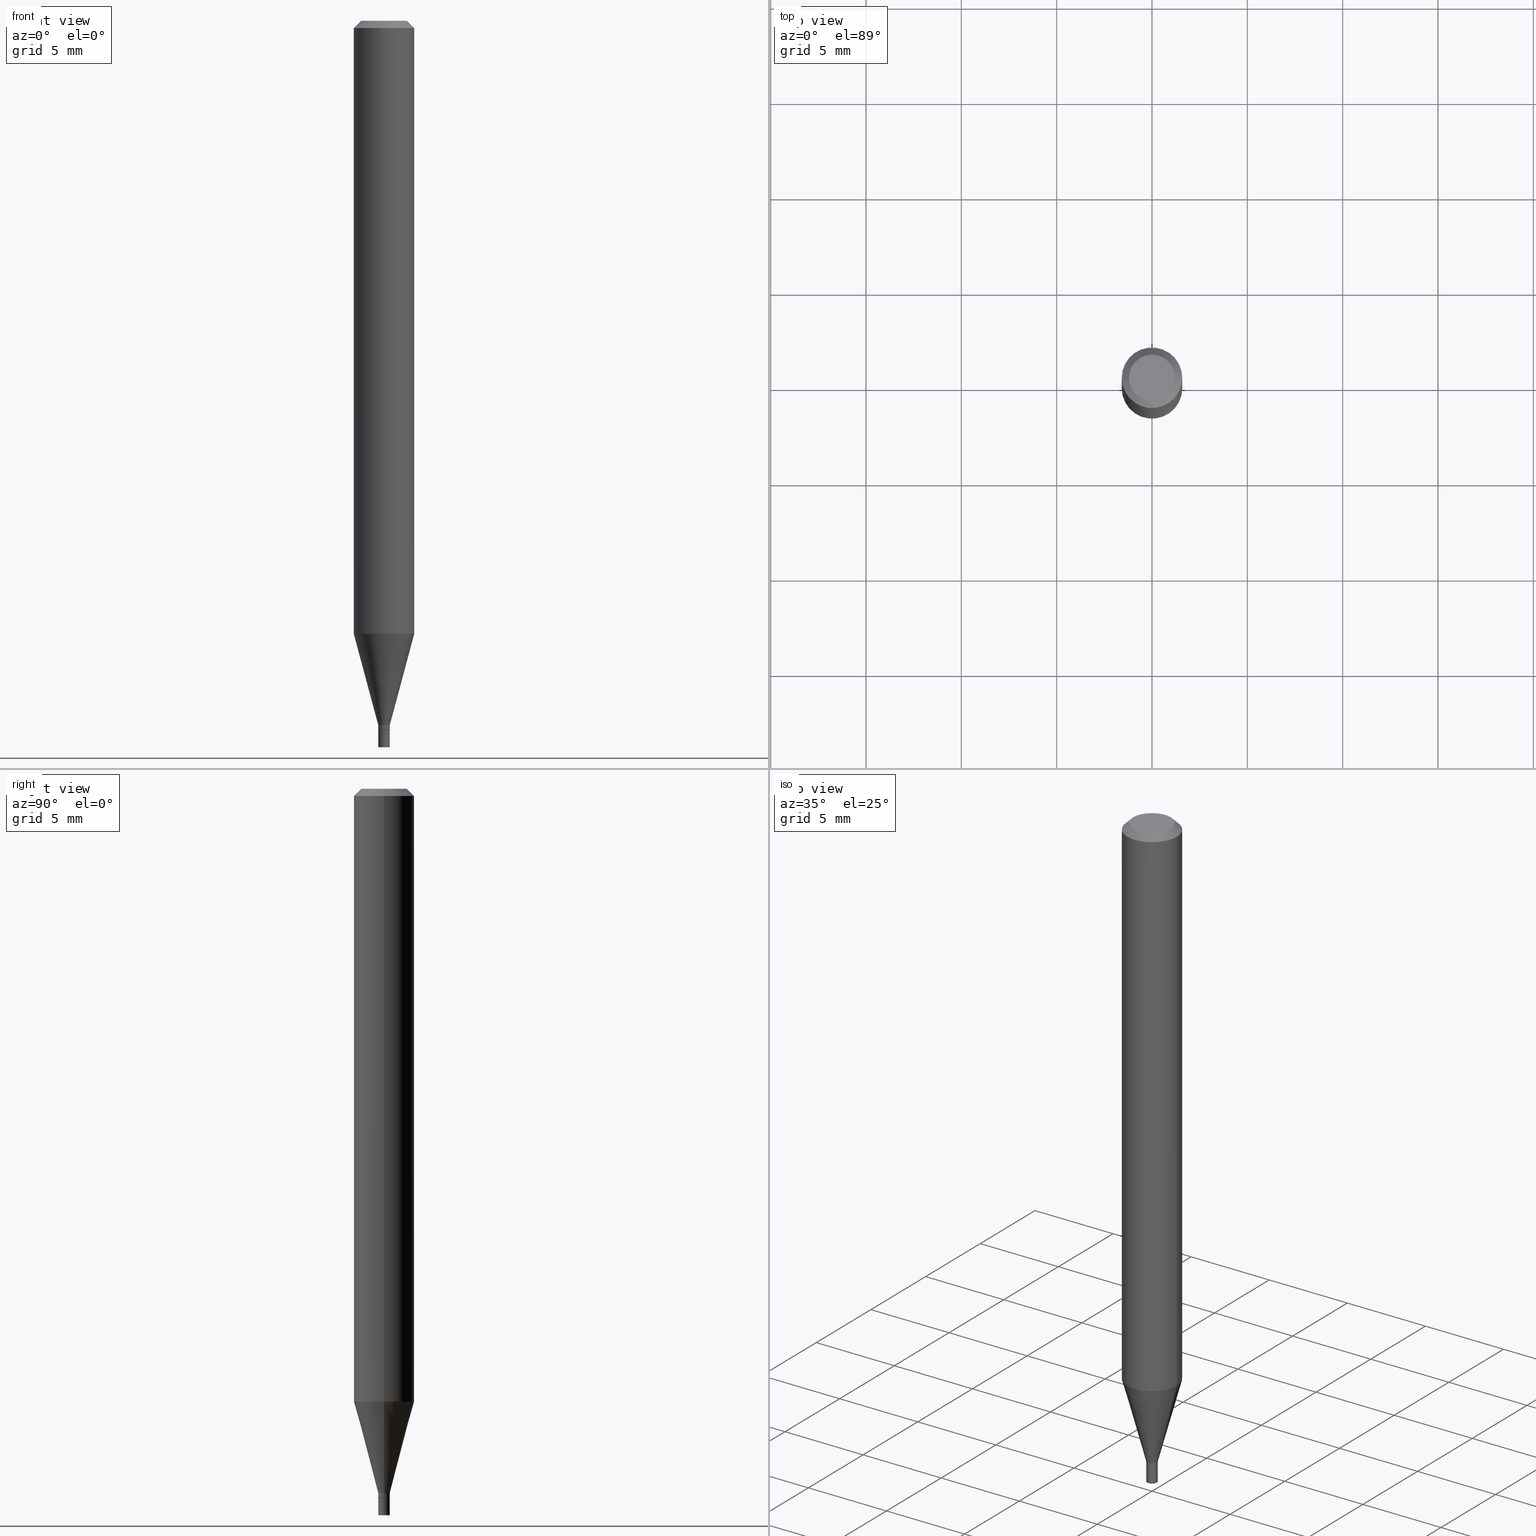
[diagram: canonical four-view strip — front | top / right | iso, engineering-drawing reading convention]
A machine part, canonical four-view strip (front | top / right | iso — engineering-drawing reading convention). The complete STEP part file that produces these views, byte-faithful:
ISO-10303-21;
HEADER;
FILE_DESCRIPTION (( 'STEP AP203' ),
    '1' );
FILE_NAME ('02220.STEP',
    '2024-03-18T19:54:57',
    ( '' ),
    ( '' ),
    'SwSTEP 2.0',
    'SolidWorks 2023',
    '' );
FILE_SCHEMA (( 'CONFIG_CONTROL_DESIGN' ));
ENDSEC;

DATA;
#1 = AXIS2_PLACEMENT_3D ( 'NONE', #249, #175, #108 ) ;
#2 = CARTESIAN_POINT ( 'NONE',  ( 0.01199999999999992219, -5.193578491529179010E-15, -1.463500000000000023 ) ) ;
#3 = DIRECTION ( 'NONE',  ( -2.438088387897960049E-29, 3.491481338843145188E-15, 1.000000000000000000 ) ) ;
#4 = CC_DESIGN_SECURITY_CLASSIFICATION ( #378, ( #311 ) ) ;
#5 = DIRECTION ( 'NONE',  ( 1.000000000000000000, -6.982962677686291165E-15, 0.000000000000000000 ) ) ;
#6 = AXIS2_PLACEMENT_3D ( 'NONE', #285, #433, #113 ) ;
#7 = AXIS2_PLACEMENT_3D ( 'NONE', #218, #161, #65 ) ;
#8 = DIRECTION ( 'NONE',  ( 1.000000000000000000, -6.982962677686291165E-15, 0.000000000000000000 ) ) ;
#9 = ORIENTED_EDGE ( 'NONE', *, *, #129, .T. ) ;
#10 = ADVANCED_FACE ( 'NONE', ( #401 ), #333, .T. ) ;
#11 = ORIENTED_EDGE ( 'NONE', *, *, #326, .F. ) ;
#12 = APPROVAL_ROLE ( '' ) ;
#13 = DIRECTION ( 'NONE',  ( -2.445468806185136597E-29, 3.491481338843145583E-15, 1.000000000000000000 ) ) ;
#14 = ORIENTED_EDGE ( 'NONE', *, *, #129, .F. ) ;
#15 = CARTESIAN_POINT ( 'NONE',  ( -0.06250000000000000000, -1.791386593336637406E-15, -0.01499999999999999944 ) ) ;
#16 = APPROVAL_DATE_TIME ( #405, #183 ) ;
#17 = VERTEX_POINT ( 'NONE', #15 ) ;
#18 = AXIS2_PLACEMENT_3D ( 'NONE', #69, #173, #273 ) ;
#19 = VERTEX_POINT ( 'NONE', #80 ) ;
#20 = EDGE_LOOP ( 'NONE', ( #238, #224 ) ) ;
#21 = DATE_AND_TIME ( #47, #158 ) ;
#22 = DIRECTION ( 'NONE',  ( 1.000000000000000000, -6.982962677686291165E-15, 0.000000000000000000 ) ) ;
#23 = APPROVAL_STATUS ( 'not_yet_approved' ) ;
#24 = AXIS2_PLACEMENT_3D ( 'NONE', #76, #247, #356 ) ;
#25 = ORIENTED_EDGE ( 'NONE', *, *, #44, .T. ) ;
#26 = EDGE_CURVE ( 'NONE', #160, #138, #355, .T. ) ;
#27 = DIRECTION ( 'NONE',  ( -1.000000000000000000, 6.982962677686265922E-15, -4.876176775795935793E-29 ) ) ;
#28 = DIRECTION ( 'NONE',  ( 1.000000000000000000, -6.982962677686266711E-15, 0.000000000000000000 ) ) ;
#29 = DIRECTION ( 'NONE',  ( 1.000000000000000000, -6.982962677686266711E-15, 4.876176775795935232E-29 ) ) ;
#30 = CARTESIAN_POINT ( 'NONE',  ( 0.000000000000000000, 0.000000000000000000, 0.000000000000000000 ) ) ;
#31 = AXIS2_PLACEMENT_3D ( 'NONE', #203, #424, #345 ) ;
#32 = CC_DESIGN_DATE_AND_TIME_ASSIGNMENT ( #55, #182, ( #378 ) ) ;
#33 = DIRECTION ( 'NONE',  ( -2.438088387897960049E-29, 3.491481338843145188E-15, 1.000000000000000000 ) ) ;
#34 = ADVANCED_BREP_SHAPE_REPRESENTATION ( '02220', ( #303, #466, #168 ), #268 ) ;
#35 = ADVANCED_FACE ( 'NONE', ( #154 ), #257, .T. ) ;
#36 = LINE ( 'NONE', #320, #110 ) ;
#37 = ORIENTED_EDGE ( 'NONE', *, *, #234, .F. ) ;
#38 = DIRECTION ( 'NONE',  ( -2.445468806185136597E-29, 3.491481338843145583E-15, 1.000000000000000000 ) ) ;
#39 = CIRCLE ( 'NONE', #444, 0.01149999999999999981 ) ;
#40 = CC_DESIGN_APPROVAL ( #73, ( #107 ) ) ;
#41 = ORIENTED_EDGE ( 'NONE', *, *, #301, .T. ) ;
#42 = CARTESIAN_POINT ( 'NONE',  ( 3.555711644193189020E-29, -5.076613866677933538E-15, -1.454000000000000181 ) ) ;
#43 = PERSON_AND_ORGANIZATION ( #316, #388 ) ;
#44 = EDGE_CURVE ( 'NONE', #123, #343, #441, .T. ) ;
#45 = ORIENTED_EDGE ( 'NONE', *, *, #26, .T. ) ;
#46 = VERTEX_POINT ( 'NONE', #445 ) ;
#47 = CALENDAR_DATE ( 2024, 18, 3 ) ;
#48 = CARTESIAN_POINT ( 'NONE',  ( 2.080290297812910479E-44, -2.970103211220577886E-30, -8.506713692488703374E-16 ) ) ;
#49 = DIRECTION ( 'NONE',  ( 1.000000000000000000, -6.982962677686266711E-15, 4.876176775795935793E-29 ) ) ;
#50 = APPLICATION_PROTOCOL_DEFINITION ( 'international standard', 'config_control_design', 1994, #430 ) ;
#51 = VECTOR ( 'NONE', #462, 39.37007874015748854 ) ;
#52 = DIRECTION ( 'NONE',  ( -1.000000000000000000, 6.982962677686265922E-15, -4.876176775795935793E-29 ) ) ;
#53 = ORIENTED_EDGE ( 'NONE', *, *, #323, .F. ) ;
#54 = LOCAL_TIME ( 15, 54, 57.00000000000000000, #414 ) ;
#55 = DATE_AND_TIME ( #232, #252 ) ;
#56 = DIRECTION ( 'NONE',  ( -0.7071067811865676678, 2.468850131082468081E-15, -0.7071067811865273667 ) ) ;
#57 = ORIENTED_EDGE ( 'NONE', *, *, #350, .F. ) ;
#58 = DIRECTION ( 'NONE',  ( 1.000000000000000000, 0.000000000000000000, 0.000000000000000000 ) ) ;
#59 = ORIENTED_EDGE ( 'NONE', *, *, #26, .F. ) ;
#60 = ORIENTED_EDGE ( 'NONE', *, *, #425, .T. ) ;
#61 =( LENGTH_UNIT ( ) NAMED_UNIT ( * ) SI_UNIT ( $, .METRE. ) );
#62 = ADVANCED_FACE ( 'NONE', ( #263 ), #254, .T. ) ;
#63 = ORIENTED_EDGE ( 'NONE', *, *, #140, .F. ) ;
#64 = AXIS2_PLACEMENT_3D ( 'NONE', #371, #3, #251 ) ;
#65 = DIRECTION ( 'NONE',  ( -1.000000000000000000, 6.982962677686266711E-15, 0.000000000000000000 ) ) ;
#66 = CYLINDRICAL_SURFACE ( 'NONE', #24, 0.01199999999999992219 ) ;
#67 = ADVANCED_FACE ( 'NONE', ( #189 ), #117, .T. ) ;
#68 = CARTESIAN_POINT ( 'NONE',  ( 8.379555213227099805E-17, 0.01199999999999488802, -1.463999999999999968 ) ) ;
#69 = CARTESIAN_POINT ( 'NONE',  ( 3.094817645626298552E-29, -4.418579386290752571E-15, -1.265531434217771922 ) ) ;
#70 = VECTOR ( 'NONE', #102, 39.37007874015748143 ) ;
#71 = ORIENTED_EDGE ( 'NONE', *, *, #212, .T. ) ;
#72 = DIRECTION ( 'NONE',  ( -1.000000000000000000, 6.982962677686266711E-15, 0.000000000000000000 ) ) ;
#73 = APPROVAL ( #328, 'UNSPECIFIED' ) ;
#74 = CARTESIAN_POINT ( 'NONE',  ( -0.01199999999999992219, 8.526512829121146941E-17, -5.902722108305848466E-31 ) ) ;
#75 = LINE ( 'NONE', #210, #143 ) ;
#76 = CARTESIAN_POINT ( 'NONE',  ( 0.000000000000000000, 0.000000000000000000, 0.000000000000000000 ) ) ;
#77 = EDGE_CURVE ( 'NONE', #19, #293, #454, .T. ) ;
#78 = AXIS2_PLACEMENT_3D ( 'NONE', #429, #137, #72 ) ;
#79 = DIRECTION ( 'NONE',  ( 1.000000000000000000, -6.982962677686267499E-15, 4.852736867747366768E-29 ) ) ;
#80 = CARTESIAN_POINT ( 'NONE',  ( -0.01200000000000000025, -5.089110215874330372E-15, -1.463999999999999968 ) ) ;
#81 = ORIENTED_EDGE ( 'NONE', *, *, #77, .F. ) ;
#82 = CARTESIAN_POINT ( 'NONE',  ( 3.555711644193189020E-29, -5.076613866677933538E-15, -1.454000000000000181 ) ) ;
#83 = AXIS2_PLACEMENT_3D ( 'NONE', #159, #302, #415 ) ;
#84 = DIRECTION ( 'NONE',  ( -2.445468806185136597E-29, 3.491481338843145583E-15, 1.000000000000000000 ) ) ;
#85 = DIRECTION ( 'NONE',  ( 0.000000000000000000, 0.000000000000000000, 1.000000000000000000 ) ) ;
#86 = CARTESIAN_POINT ( 'NONE',  ( 0.01199999999999992219, -8.379555213223466114E-17, 5.851412130955085677E-31 ) ) ;
#87 = ORIENTED_EDGE ( 'NONE', *, *, #435, .T. ) ;
#88 = APPLICATION_PROTOCOL_DEFINITION ( 'international standard', 'config_control_design', 1994, #253 ) ;
#89 = DIRECTION ( 'NONE',  ( 1.000000000000000000, -6.982962677686251722E-15, 0.000000000000000000 ) ) ;
#90 = ORIENTED_EDGE ( 'NONE', *, *, #319, .T. ) ;
#91 = ORIENTED_EDGE ( 'NONE', *, *, #179, .F. ) ;
#92 = CC_DESIGN_PERSON_AND_ORGANIZATION_ASSIGNMENT ( #402, #225, ( #311 ) ) ;
#93 = EDGE_CURVE ( 'NONE', #148, #384, #284, .T. ) ;
#94 = CIRCLE ( 'NONE', #346, 0.01200000000000000025 ) ;
#95 = CIRCLE ( 'NONE', #18, 0.06250000000000000000 ) ;
#96 = EDGE_LOOP ( 'NONE', ( #99, #438, #63, #114 ) ) ;
#97 = CALENDAR_DATE ( 2024, 18, 3 ) ;
#98 = EDGE_LOOP ( 'NONE', ( #71, #25, #57, #367 ) ) ;
#99 = ORIENTED_EDGE ( 'NONE', *, *, #350, .T. ) ;
#100 = LINE ( 'NONE', #74, #70 ) ;
#101 = CARTESIAN_POINT ( 'NONE',  ( 0.01200000000000000025, -8.379555213223520348E-17, 5.851412130955122461E-31 ) ) ;
#102 = DIRECTION ( 'NONE',  ( -2.445468806185136877E-29, 3.491481338843145188E-15, 1.000000000000000000 ) ) ;
#103 = FACE_OUTER_BOUND ( 'NONE', #200, .T. ) ;
#104 = CARTESIAN_POINT ( 'NONE',  ( 0.06250000000000000000, -4.888073874380388472E-16, -0.01499999999999999944 ) ) ;
#105 = AXIS2_PLACEMENT_3D ( 'NONE', #325, #84, #8 ) ;
#106 = CIRCLE ( 'NONE', #258, 0.06250000000000000000 ) ;
#107 = PRODUCT_DEFINITION ( 'UNKNOWN', '', #311, #216 ) ;
#108 = DIRECTION ( 'NONE',  ( 1.000000000000000000, -6.982962677686266711E-15, 0.000000000000000000 ) ) ;
#109 = CYLINDRICAL_SURFACE ( 'NONE', #376, 0.01200000000000000025 ) ;
#110 = VECTOR ( 'NONE', #331, 39.37007874015748143 ) ;
#111 = CC_DESIGN_APPROVAL ( #183, ( #311 ) ) ;
#112 = DIRECTION ( 'NONE',  ( -2.445468806185136597E-29, 3.491481338843145583E-15, 1.000000000000000000 ) ) ;
#113 = DIRECTION ( 'NONE',  ( 1.000000000000000000, -6.982962677686262766E-15, 0.000000000000000000 ) ) ;
#114 = ORIENTED_EDGE ( 'NONE', *, *, #128, .F. ) ;
#115 = APPROVAL_STATUS ( 'not_yet_approved' ) ;
#116 = AXIS2_PLACEMENT_3D ( 'NONE', #30, #241, #386 ) ;
#117 = CYLINDRICAL_SURFACE ( 'NONE', #431, 0.06250000000000000000 ) ;
#118 = COORDINATED_UNIVERSAL_TIME_OFFSET ( 5, 0, .BEHIND. ) ;
#119 = ORIENTED_EDGE ( 'NONE', *, *, #326, .T. ) ;
#120 = VERTEX_POINT ( 'NONE', #180 ) ;
#121 = ORIENTED_EDGE ( 'NONE', *, *, #141, .T. ) ;
#122 = EDGE_CURVE ( 'NONE', #293, #19, #94, .T. ) ;
#123 = VERTEX_POINT ( 'NONE', #288 ) ;
#124 = DIRECTION ( 'NONE',  ( 1.000000000000000000, -6.982962677686251722E-15, 0.000000000000000000 ) ) ;
#125 = CALENDAR_DATE ( 2024, 18, 3 ) ;
#126 = LINE ( 'NONE', #266, #305 ) ;
#127 = EDGE_LOOP ( 'NONE', ( #262, #186, #53, #404 ) ) ;
#128 = EDGE_CURVE ( 'NONE', #248, #138, #292, .T. ) ;
#129 = EDGE_CURVE ( 'NONE', #148, #17, #261, .T. ) ;
#130 = EDGE_CURVE ( 'NONE', #384, #289, #358, .T. ) ;
#131 = AXIS2_PLACEMENT_3D ( 'NONE', #363, #290, #151 ) ;
#132 = CARTESIAN_POINT ( 'NONE',  ( 3.668203209277705088E-31, -5.237222008264718399E-17, -0.01499999999999999944 ) ) ;
#133 = CIRCLE ( 'NONE', #413, 0.01200000000000000025 ) ;
#134 = DIRECTION ( 'NONE',  ( -2.445468806185136877E-29, 3.491481338843145188E-15, 1.000000000000000000 ) ) ;
#135 = DIRECTION ( 'NONE',  ( -2.445468806185136597E-29, 3.491481338843145583E-15, 1.000000000000000000 ) ) ;
#136 = CARTESIAN_POINT ( 'NONE',  ( 3.555711644193189020E-29, -5.076613866677933538E-15, -1.454000000000000181 ) ) ;
#137 = DIRECTION ( 'NONE',  ( 2.445468806185136597E-29, -3.491481338843145583E-15, -1.000000000000000000 ) ) ;
#138 = VERTEX_POINT ( 'NONE', #400 ) ;
#139 = CIRCLE ( 'NONE', #426, 0.04749999999999999362 ) ;
#140 = EDGE_CURVE ( 'NONE', #138, #160, #412, .T. ) ;
#141 = EDGE_CURVE ( 'NONE', #123, #46, #39, .T. ) ;
#142 = CARTESIAN_POINT ( 'NONE',  ( -0.06250000000000000000, 4.440892098500626162E-16, -3.074334431409316114E-30 ) ) ;
#143 = VECTOR ( 'NONE', #278, 39.37007874015748854 ) ;
#144 = CARTESIAN_POINT ( 'NONE',  ( -0.01149999999999999981, -5.029816265453953987E-15, -1.463999999999999968 ) ) ;
#145 = EDGE_LOOP ( 'NONE', ( #287, #121, #304, #178 ) ) ;
#146 = CC_DESIGN_PERSON_AND_ORGANIZATION_ASSIGNMENT ( #411, #256, ( #448 ) ) ;
#147 = EDGE_LOOP ( 'NONE', ( #91, #227, #440, #220 ) ) ;
#148 = VERTEX_POINT ( 'NONE', #177 ) ;
#149 = APPROVAL_DATE_TIME ( #330, #73 ) ;
#150 = VECTOR ( 'NONE', #134, 39.37007874015748143 ) ;
#151 = DIRECTION ( 'NONE',  ( 1.000000000000000000, -6.982962677686296687E-15, 0.000000000000000000 ) ) ;
#152 = APPROVAL_DATE_TIME ( #21, #432 ) ;
#153 = CYLINDRICAL_SURFACE ( 'NONE', #281, 0.06250000000000000000 ) ;
#154 = FACE_OUTER_BOUND ( 'NONE', #127, .T. ) ;
#155 = DIRECTION ( 'NONE',  ( 1.000000000000000000, -6.982962677686266711E-15, 4.876176775795935793E-29 ) ) ;
#156 = CARTESIAN_POINT ( 'NONE',  ( 2.080290297812910479E-44, -2.970103211220577886E-30, -8.506713692488703374E-16 ) ) ;
#157 =( NAMED_UNIT ( * ) PLANE_ANGLE_UNIT ( ) SI_UNIT ( $, .RADIAN. ) );
#158 = LOCAL_TIME ( 15, 54, 57.00000000000000000, #118 ) ;
#159 = CARTESIAN_POINT ( 'NONE',  ( 3.668203209277704895E-29, -5.237222008264718177E-15, -1.500000000000000222 ) ) ;
#160 = VERTEX_POINT ( 'NONE', #226 ) ;
#161 = DIRECTION ( 'NONE',  ( 2.445468806185136597E-29, -3.491481338843145583E-15, -1.000000000000000000 ) ) ;
#162 = PERSON_AND_ORGANIZATION ( #316, #388 ) ;
#163 = CLOSED_SHELL ( 'NONE', ( #295, #174, #62, #456 ) ) ;
#164 = AXIS2_PLACEMENT_3D ( 'NONE', #136, #421, #246 ) ;
#165 = ORIENTED_EDGE ( 'NONE', *, *, #229, .T. ) ;
#166 = DIRECTION ( 'NONE',  ( 0.7071067811865676678, -7.319954787623323887E-15, -0.7071067811865273667 ) ) ;
#167 = AXIS2_PLACEMENT_3D ( 'NONE', #298, #449, #124 ) ;
#168 = AXIS2_PLACEMENT_3D ( 'NONE', #260, #85, #58 ) ;
#169 = LOCAL_TIME ( 15, 54, 57.00000000000000000, #340 ) ;
#170 = LINE ( 'NONE', #312, #51 ) ;
#171 = FACE_OUTER_BOUND ( 'NONE', #147, .T. ) ;
#172 = DIRECTION ( 'NONE',  ( 1.000000000000000000, -6.982962677686296687E-15, 0.000000000000000000 ) ) ;
#173 = DIRECTION ( 'NONE',  ( -2.445468806185136597E-29, 3.491481338843145583E-15, 1.000000000000000000 ) ) ;
#174 = ADVANCED_FACE ( 'NONE', ( #322 ), #434, .F. ) ;
#175 = DIRECTION ( 'NONE',  ( -2.445468806185136597E-29, 3.491481338843145583E-15, 1.000000000000000000 ) ) ;
#176 = ORIENTED_EDGE ( 'NONE', *, *, #141, .F. ) ;
#177 = CARTESIAN_POINT ( 'NONE',  ( -0.06250000000000000000, -3.974490176440689955E-15, -1.265531434217771922 ) ) ;
#178 = ORIENTED_EDGE ( 'NONE', *, *, #237, .F. ) ;
#179 = EDGE_CURVE ( 'NONE', #410, #120, #139, .T. ) ;
#180 = CARTESIAN_POINT ( 'NONE',  ( -0.04749999999999999362, 3.578768372314195715E-16, -8.506713692488727040E-16 ) ) ;
#181 = DIRECTION ( 'NONE',  ( 1.000000000000000000, -6.982962677686296687E-15, 0.000000000000000000 ) ) ;
#182 = DATE_TIME_ROLE ( 'classification_date' ) ;
#183 = APPROVAL ( #23, 'UNSPECIFIED' ) ;
#184 = CARTESIAN_POINT ( 'NONE',  ( 3.580166332255040005E-29, -5.111528680066365187E-15, -1.463999999999999968 ) ) ;
#185 = EDGE_CURVE ( 'NONE', #46, #248, #36, .T. ) ;
#186 = ORIENTED_EDGE ( 'NONE', *, *, #234, .T. ) ;
#187 = AXIS2_PLACEMENT_3D ( 'NONE', #42, #215, #181 ) ;
#188 = CONICAL_SURFACE ( 'NONE', #7, 0.06250000000000000000, 0.7853981633974768117 ) ;
#189 = FACE_OUTER_BOUND ( 'NONE', #436, .T. ) ;
#190 = PERSON_AND_ORGANIZATION ( #316, #388 ) ;
#191 = DIRECTION ( 'NONE',  ( -2.445468806185136597E-29, 3.491481338843145583E-15, 1.000000000000000000 ) ) ;
#192 = ORIENTED_EDGE ( 'NONE', *, *, #380, .F. ) ;
#193 = CALENDAR_DATE ( 2024, 18, 3 ) ;
#194 = CARTESIAN_POINT ( 'NONE',  ( 3.580166332255040005E-29, -5.111528680066365187E-15, -1.463999999999999968 ) ) ;
#195 = ORIENTED_EDGE ( 'NONE', *, *, #130, .F. ) ;
#196 = PERSON_AND_ORGANIZATION_ROLE ( 'creator' ) ;
#197 = ADVANCED_FACE ( 'NONE', ( #374 ), #153, .T. ) ;
#198 = ORIENTED_EDGE ( 'NONE', *, *, #301, .F. ) ;
#199 = CIRCLE ( 'NONE', #230, 0.01199999999999992219 ) ;
#200 = EDGE_LOOP ( 'NONE', ( #87, #90, #255, #11 ) ) ;
#201 = CC_DESIGN_PERSON_AND_ORGANIZATION_ASSIGNMENT ( #162, #264, ( #311 ) ) ;
#202 = ADVANCED_FACE ( 'NONE', ( #297 ), #270, .F. ) ;
#203 = CARTESIAN_POINT ( 'NONE',  ( 3.580166332255040005E-29, -5.111528680066365187E-15, -1.463999999999999968 ) ) ;
#204 = DIRECTION ( 'NONE',  ( 2.438088387897960049E-29, -3.491481338843145188E-15, -1.000000000000000000 ) ) ;
#205 = AXIS2_PLACEMENT_3D ( 'NONE', #82, #112, #366 ) ;
#206 = DIRECTION ( 'NONE',  ( -2.445468806185136597E-29, 3.491481338843145583E-15, 1.000000000000000000 ) ) ;
#207 = AXIS2_PLACEMENT_3D ( 'NONE', #68, #204, #27 ) ;
#208 = VERTEX_POINT ( 'NONE', #337 ) ;
#209 = EDGE_CURVE ( 'NONE', #120, #17, #126, .T. ) ;
#210 = CARTESIAN_POINT ( 'NONE',  ( -0.01199999999999992219, -4.991348738386722228E-15, -1.454000000000000181 ) ) ;
#211 = FACE_OUTER_BOUND ( 'NONE', #96, .T. ) ;
#212 = EDGE_CURVE ( 'NONE', #46, #123, #235, .T. ) ;
#213 = CARTESIAN_POINT ( 'NONE',  ( 0.000000000000000000, 0.000000000000000000, 0.000000000000000000 ) ) ;
#214 = CLOSED_SHELL ( 'NONE', ( #383, #10, #465, #197, #35, #354, #67, #269, #202, #286, #335, #307 ) ) ;
#215 = DIRECTION ( 'NONE',  ( -2.445468806185136597E-29, 3.491481338843145583E-15, 1.000000000000000000 ) ) ;
#216 = DESIGN_CONTEXT ( 'detailed design', #253, 'design' ) ;
#217 = ORIENTED_EDGE ( 'NONE', *, *, #212, .F. ) ;
#218 = CARTESIAN_POINT ( 'NONE',  ( 3.668203209277705088E-31, -5.237222008264718399E-17, -0.01499999999999999944 ) ) ;
#219 = CONICAL_SURFACE ( 'NONE', #78, 0.06250000000000000000, 0.7853981633974768117 ) ;
#220 = ORIENTED_EDGE ( 'NONE', *, *, #209, .F. ) ;
#221 = COORDINATED_UNIVERSAL_TIME_OFFSET ( 5, 0, .BEHIND. ) ;
#222 = DIRECTION ( 'NONE',  ( -2.445468806185136877E-29, 3.491481338843145188E-15, 1.000000000000000000 ) ) ;
#223 =( NAMED_UNIT ( * ) SI_UNIT ( $, .STERADIAN. ) SOLID_ANGLE_UNIT ( ) );
#224 = ORIENTED_EDGE ( 'NONE', *, *, #229, .F. ) ;
#225 = PERSON_AND_ORGANIZATION_ROLE ( 'design_supplier' ) ;
#226 = CARTESIAN_POINT ( 'NONE',  ( -0.01199999999999992219, -4.482919457413706092E-15, -1.454000000000000181 ) ) ;
#227 = ORIENTED_EDGE ( 'NONE', *, *, #344, .T. ) ;
#228 = DIRECTION ( 'NONE',  ( -2.445468806185136597E-29, 3.491481338843145583E-15, 1.000000000000000000 ) ) ;
#229 = EDGE_CURVE ( 'NONE', #423, #208, #391, .T. ) ;
#230 = AXIS2_PLACEMENT_3D ( 'NONE', #308, #280, #172 ) ;
#231 = DIMENSIONAL_EXPONENTS ( 1.000000000000000000, 0.000000000000000000, 0.000000000000000000, 0.000000000000000000, 0.000000000000000000, 0.000000000000000000, 0.000000000000000000 ) ;
#232 = CALENDAR_DATE ( 2024, 18, 3 ) ;
#233 = EDGE_LOOP ( 'NONE', ( #37, #45, #416, #451 ) ) ;
#234 = EDGE_CURVE ( 'NONE', #160, #148, #75, .T. ) ;
#235 = CIRCLE ( 'NONE', #403, 0.01149999999999999981 ) ;
#236 = PRODUCT_DEFINITION_SHAPE ( 'NONE', 'NONE',  #107 ) ;
#237 = EDGE_CURVE ( 'NONE', #343, #248, #272, .T. ) ;
#238 = ORIENTED_EDGE ( 'NONE', *, *, #435, .F. ) ;
#239 =( CONVERSION_BASED_UNIT ( 'INCH', #271 ) LENGTH_UNIT ( ) NAMED_UNIT ( #231 ) );
#240 = DIRECTION ( 'NONE',  ( -2.445468806185136877E-29, 3.491481338843145188E-15, 1.000000000000000000 ) ) ;
#241 = DIRECTION ( 'NONE',  ( -2.445468806185136597E-29, 3.491481338843145583E-15, 1.000000000000000000 ) ) ;
#242 = DIRECTION ( 'NONE',  ( -2.445468806185136597E-29, 3.491481338843145583E-15, 1.000000000000000000 ) ) ;
#243 = VECTOR ( 'NONE', #396, 39.37007874015748143 ) ;
#244 = LOCAL_TIME ( 15, 54, 57.00000000000000000, #221 ) ;
#245 = CARTESIAN_POINT ( 'NONE',  ( 3.580166332255040005E-29, -5.111528680066365187E-15, -1.463999999999999968 ) ) ;
#246 = DIRECTION ( 'NONE',  ( 1.000000000000000000, -6.982962677686296687E-15, 0.000000000000000000 ) ) ;
#247 = DIRECTION ( 'NONE',  ( -2.445468806185136597E-29, 3.491481338843145583E-15, 1.000000000000000000 ) ) ;
#248 = VERTEX_POINT ( 'NONE', #2 ) ;
#249 = CARTESIAN_POINT ( 'NONE',  ( 3.668203209277705088E-31, -5.237222008264718399E-17, -0.01499999999999999944 ) ) ;
#250 = AXIS2_PLACEMENT_3D ( 'NONE', #407, #228, #372 ) ;
#251 = DIRECTION ( 'NONE',  ( 1.000000000000000000, -6.982962677686265922E-15, 4.876176775795935793E-29 ) ) ;
#252 = LOCAL_TIME ( 15, 54, 57.00000000000000000, #299 ) ;
#253 = APPLICATION_CONTEXT ( 'configuration controlled 3d designs of mechanical parts and assemblies' ) ;
#254 = CYLINDRICAL_SURFACE ( 'NONE', #250, 0.01200000000000000025 ) ;
#255 = ORIENTED_EDGE ( 'NONE', *, *, #122, .F. ) ;
#256 = PERSON_AND_ORGANIZATION_ROLE ( 'design_owner' ) ;
#257 = CONICAL_SURFACE ( 'NONE', #187, 0.01199999999999992219, 0.2617993877991498519 ) ;
#258 = AXIS2_PLACEMENT_3D ( 'NONE', #132, #206, #28 ) ;
#259 = DIRECTION ( 'NONE',  ( -2.445468806185136597E-29, 3.491481338843145583E-15, 1.000000000000000000 ) ) ;
#260 = CARTESIAN_POINT ( 'NONE',  ( 0.000000000000000000, 0.000000000000000000, 0.000000000000000000 ) ) ;
#261 = LINE ( 'NONE', #142, #243 ) ;
#262 = ORIENTED_EDGE ( 'NONE', *, *, #140, .T. ) ;
#263 = FACE_OUTER_BOUND ( 'NONE', #377, .T. ) ;
#264 = PERSON_AND_ORGANIZATION_ROLE ( 'creator' ) ;
#265 = DIRECTION ( 'NONE',  ( 2.438088387897960049E-29, -3.491481338843145188E-15, -1.000000000000000000 ) ) ;
#266 = CARTESIAN_POINT ( 'NONE',  ( -0.06250000000000000000, 3.840629472727444916E-16, -0.01499999999999999944 ) ) ;
#267 = ORIENTED_EDGE ( 'NONE', *, *, #344, .F. ) ;
#268 =( GEOMETRIC_REPRESENTATION_CONTEXT ( 3 ) GLOBAL_UNCERTAINTY_ASSIGNED_CONTEXT ( ( #397 ) ) GLOBAL_UNIT_ASSIGNED_CONTEXT ( ( #239, #157, #223 ) ) REPRESENTATION_CONTEXT ( 'NONE', 'WORKASPACE' ) );
#269 = ADVANCED_FACE ( 'NONE', ( #422 ), #219, .T. ) ;
#270 = PLANE ( 'NONE',  #382 ) ;
#271 = LENGTH_MEASURE_WITH_UNIT ( LENGTH_MEASURE( 0.02539999999999999897 ), #61 );
#272 = CIRCLE ( 'NONE', #392, 0.01199999999999992219 ) ;
#273 = DIRECTION ( 'NONE',  ( 1.000000000000000000, -6.982962677686262766E-15, 0.000000000000000000 ) ) ;
#274 = FACE_OUTER_BOUND ( 'NONE', #321, .T. ) ;
#275 = LINE ( 'NONE', #351, #418 ) ;
#276 = DIRECTION ( 'NONE',  ( -2.445468806185136597E-29, 3.491481338843145583E-15, 1.000000000000000000 ) ) ;
#277 = EDGE_LOOP ( 'NONE', ( #267, #327, #464, #41 ) ) ;
#278 = DIRECTION ( 'NONE',  ( -0.2588190451025211281, 5.211531920934547886E-15, 0.9659258262890679791 ) ) ;
#279 = VECTOR ( 'NONE', #222, 39.37007874015748143 ) ;
#280 = DIRECTION ( 'NONE',  ( -2.445468806185136597E-29, 3.491481338843145583E-15, 1.000000000000000000 ) ) ;
#281 = AXIS2_PLACEMENT_3D ( 'NONE', #457, #453, #155 ) ;
#282 = PLANE ( 'NONE',  #362 ) ;
#283 = FACE_OUTER_BOUND ( 'NONE', #443, .T. ) ;
#284 = CIRCLE ( 'NONE', #6, 0.06250000000000000000 ) ;
#285 = CARTESIAN_POINT ( 'NONE',  ( 3.094817645626298552E-29, -4.418579386290752571E-15, -1.265531434217771922 ) ) ;
#286 = ADVANCED_FACE ( 'NONE', ( #283 ), #282, .F. ) ;
#287 = ORIENTED_EDGE ( 'NONE', *, *, #44, .F. ) ;
#288 = CARTESIAN_POINT ( 'NONE',  ( -0.01149999999999999981, -5.027167038279843575E-15, -1.463999999999999968 ) ) ;
#289 = VERTEX_POINT ( 'NONE', #104 ) ;
#290 = DIRECTION ( 'NONE',  ( -2.445468806185136597E-29, 3.491481338843145583E-15, 1.000000000000000000 ) ) ;
#291 = PERSON_AND_ORGANIZATION ( #316, #388 ) ;
#292 = LINE ( 'NONE', #86, #279 ) ;
#293 = VERTEX_POINT ( 'NONE', #389 ) ;
#294 = CIRCLE ( 'NONE', #324, 0.04749999999999999362 ) ;
#295 = ADVANCED_FACE ( 'NONE', ( #103 ), #109, .T. ) ;
#296 = DIRECTION ( 'NONE',  ( -0.7071067811865642261, 7.493145998870414114E-15, 0.7071067811865309194 ) ) ;
#297 = FACE_OUTER_BOUND ( 'NONE', #398, .T. ) ;
#298 = CARTESIAN_POINT ( 'NONE',  ( 3.580166332255040005E-29, -5.111528680066365187E-15, -1.463999999999999968 ) ) ;
#299 = COORDINATED_UNIVERSAL_TIME_OFFSET ( 5, 0, .BEHIND. ) ;
#300 = CARTESIAN_POINT ( 'NONE',  ( -0.01199999999999992219, -5.024517811105733163E-15, -1.463500000000000023 ) ) ;
#301 = EDGE_CURVE ( 'NONE', #17, #289, #460, .T. ) ;
#302 = DIRECTION ( 'NONE',  ( -2.445468806185136597E-29, 3.491481338843145583E-15, 1.000000000000000000 ) ) ;
#303 = MANIFOLD_SOLID_BREP ( 'Body-Move/Copy2[1]', #163 ) ;
#304 = ORIENTED_EDGE ( 'NONE', *, *, #185, .T. ) ;
#305 = VECTOR ( 'NONE', #56, 39.37007874015748143 ) ;
#306 = SECURITY_CLASSIFICATION_LEVEL ( 'unclassified' ) ;
#307 = ADVANCED_FACE ( 'NONE', ( #390 ), #66, .T. ) ;
#308 = CARTESIAN_POINT ( 'NONE',  ( 3.578943597851947764E-29, -5.109782939396944472E-15, -1.463500000000000023 ) ) ;
#309 = VECTOR ( 'NONE', #296, 39.37007874015748143 ) ;
#310 = CONICAL_SURFACE ( 'NONE', #164, 0.01199999999999992219, 0.2617993877991498519 ) ;
#311 = PRODUCT_DEFINITION_FORMATION_WITH_SPECIFIED_SOURCE ( 'ANY', '', #448, .NOT_KNOWN. ) ;
#312 = CARTESIAN_POINT ( 'NONE',  ( 0.01199999999999992219, -5.160409418810168864E-15, -1.454000000000000181 ) ) ;
#313 = CARTESIAN_POINT ( 'NONE',  ( 0.06250000000000000000, -4.855014553646144241E-15, -1.265531434217771922 ) ) ;
#314 = ORIENTED_EDGE ( 'NONE', *, *, #122, .T. ) ;
#315 = FACE_OUTER_BOUND ( 'NONE', #145, .T. ) ;
#316 = PERSON ( 'UNSPECIFIED', 'UNSPECIFIED', 'UNSPECIFIED', ('UNSPECIFIED'), ('UNSPECIFIED'), ('UNSPECIFIED') ) ;
#317 = VECTOR ( 'NONE', #240, 39.37007874015748143 ) ;
#318 = CC_DESIGN_DATE_AND_TIME_ASSIGNMENT ( #408, #364, ( #107 ) ) ;
#319 = EDGE_CURVE ( 'NONE', #423, #19, #459, .T. ) ;
#320 = CARTESIAN_POINT ( 'NONE',  ( 0.01149999999999999981, -5.191832750859757506E-15, -1.463999999999999968 ) ) ;
#321 = EDGE_LOOP ( 'NONE', ( #314, #329 ) ) ;
#322 = FACE_OUTER_BOUND ( 'NONE', #20, .T. ) ;
#323 = EDGE_CURVE ( 'NONE', #384, #148, #95, .T. ) ;
#324 = AXIS2_PLACEMENT_3D ( 'NONE', #156, #191, #342 ) ;
#325 = CARTESIAN_POINT ( 'NONE',  ( 3.580166332255040005E-29, -5.111528680066365187E-15, -1.463999999999999968 ) ) ;
#326 = EDGE_CURVE ( 'NONE', #208, #293, #419, .T. ) ;
#327 = ORIENTED_EDGE ( 'NONE', *, *, #425, .F. ) ;
#328 = APPROVAL_STATUS ( 'not_yet_approved' ) ;
#329 = ORIENTED_EDGE ( 'NONE', *, *, #77, .T. ) ;
#330 = DATE_AND_TIME ( #193, #244 ) ;
#331 = DIRECTION ( 'NONE',  ( 0.7071067811865642261, -2.468850131082431399E-15, 0.7071067811865309194 ) ) ;
#332 = ORIENTED_EDGE ( 'NONE', *, *, #319, .F. ) ;
#333 = CONICAL_SURFACE ( 'NONE', #105, 0.01149999999999999981, 0.7853981633974718157 ) ;
#334 = CONICAL_SURFACE ( 'NONE', #31, 0.01149999999999999981, 0.7853981633974718157 ) ;
#335 = ADVANCED_FACE ( 'NONE', ( #315 ), #334, .T. ) ;
#336 = ORIENTED_EDGE ( 'NONE', *, *, #128, .T. ) ;
#337 = CARTESIAN_POINT ( 'NONE',  ( 0.01200000000000000025, -5.321017560396953503E-15, -1.500000000000000222 ) ) ;
#338 = PERSON_AND_ORGANIZATION_ROLE ( 'classification_officer' ) ;
#339 = DIRECTION ( 'NONE',  ( -2.445468806185136597E-29, 3.491481338843145583E-15, 1.000000000000000000 ) ) ;
#340 = COORDINATED_UNIVERSAL_TIME_OFFSET ( 5, 0, .BEHIND. ) ;
#341 = EDGE_CURVE ( 'NONE', #138, #384, #170, .T. ) ;
#342 = DIRECTION ( 'NONE',  ( 1.000000000000000000, -6.982962677686267499E-15, 4.852736867747366768E-29 ) ) ;
#343 = VERTEX_POINT ( 'NONE', #300 ) ;
#344 = EDGE_CURVE ( 'NONE', #410, #289, #275, .T. ) ;
#345 = DIRECTION ( 'NONE',  ( 1.000000000000000000, -6.982962677686291165E-15, 0.000000000000000000 ) ) ;
#346 = AXIS2_PLACEMENT_3D ( 'NONE', #184, #13, #89 ) ;
#347 = PRODUCT_RELATED_PRODUCT_CATEGORY ( 'detail', '', ( #448 ) ) ;
#348 = EDGE_LOOP ( 'NONE', ( #369, #9, #375, #195 ) ) ;
#349 = CARTESIAN_POINT ( 'NONE',  ( -0.01200000000000000025, 8.526512829121202408E-17, -5.902722108305887001E-31 ) ) ;
#350 = EDGE_CURVE ( 'NONE', #248, #343, #199, .T. ) ;
#351 = CARTESIAN_POINT ( 'NONE',  ( 0.06250000000000000000, -4.811533449433679005E-16, -0.01499999999999999944 ) ) ;
#352 = CYLINDRICAL_SURFACE ( 'NONE', #116, 0.01199999999999992219 ) ;
#353 = CARTESIAN_POINT ( 'NONE',  ( 3.578943597851947764E-29, -5.109782939396944472E-15, -1.463500000000000023 ) ) ;
#354 = ADVANCED_FACE ( 'NONE', ( #427 ), #310, .T. ) ;
#355 = CIRCLE ( 'NONE', #131, 0.01199999999999992219 ) ;
#356 = DIRECTION ( 'NONE',  ( 1.000000000000000000, -6.982962677686266711E-15, 4.876176775795936353E-29 ) ) ;
#357 = CARTESIAN_POINT ( 'NONE',  ( 0.000000000000000000, 0.000000000000000000, 0.000000000000000000 ) ) ;
#358 = LINE ( 'NONE', #361, #360 ) ;
#359 = ORIENTED_EDGE ( 'NONE', *, *, #237, .T. ) ;
#360 = VECTOR ( 'NONE', #437, 39.37007874015748143 ) ;
#361 = CARTESIAN_POINT ( 'NONE',  ( 0.06250000000000000000, -4.364351673553916694E-16, 3.047610484872459871E-30 ) ) ;
#362 = AXIS2_PLACEMENT_3D ( 'NONE', #245, #33, #428 ) ;
#363 = CARTESIAN_POINT ( 'NONE',  ( 3.555711644193189020E-29, -5.076613866677933538E-15, -1.454000000000000181 ) ) ;
#364 = DATE_TIME_ROLE ( 'creation_date' ) ;
#365 = CC_DESIGN_PERSON_AND_ORGANIZATION_ASSIGNMENT ( #190, #196, ( #107 ) ) ;
#366 = DIRECTION ( 'NONE',  ( 1.000000000000000000, -6.982962677686296687E-15, 0.000000000000000000 ) ) ;
#367 = ORIENTED_EDGE ( 'NONE', *, *, #185, .F. ) ;
#368 = ORIENTED_EDGE ( 'NONE', *, *, #93, .T. ) ;
#369 = ORIENTED_EDGE ( 'NONE', *, *, #323, .T. ) ;
#370 = PERSON_AND_ORGANIZATION ( #316, #388 ) ;
#371 = CARTESIAN_POINT ( 'NONE',  ( 3.576687321579069994E-29, -5.368277968210015545E-15, -1.500000000000000222 ) ) ;
#372 = DIRECTION ( 'NONE',  ( 1.000000000000000000, -6.982962677686266711E-15, 4.876176775795935232E-29 ) ) ;
#373 = PERSON_AND_ORGANIZATION ( #316, #388 ) ;
#374 = FACE_OUTER_BOUND ( 'NONE', #348, .T. ) ;
#375 = ORIENTED_EDGE ( 'NONE', *, *, #393, .F. ) ;
#376 = AXIS2_PLACEMENT_3D ( 'NONE', #213, #242, #29 ) ;
#377 = EDGE_LOOP ( 'NONE', ( #332, #165, #119, #81 ) ) ;
#378 = SECURITY_CLASSIFICATION ( '', '', #306 ) ;
#379 = APPROVAL_ROLE ( '' ) ;
#380 = EDGE_CURVE ( 'NONE', #343, #160, #100, .T. ) ;
#381 = ORIENTED_EDGE ( 'NONE', *, *, #179, .T. ) ;
#382 = AXIS2_PLACEMENT_3D ( 'NONE', #447, #265, #52 ) ;
#383 = ADVANCED_FACE ( 'NONE', ( #211 ), #352, .T. ) ;
#384 = VERTEX_POINT ( 'NONE', #313 ) ;
#385 = DIRECTION ( 'NONE',  ( 1.000000000000000000, -6.982962677686251722E-15, 0.000000000000000000 ) ) ;
#386 = DIRECTION ( 'NONE',  ( 1.000000000000000000, -6.982962677686266711E-15, 4.876176775795936353E-29 ) ) ;
#387 = DIRECTION ( 'NONE',  ( 1.000000000000000000, -6.982962677686296687E-15, 0.000000000000000000 ) ) ;
#388 = ORGANIZATION ( 'UNSPECIFIED', 'UNSPECIFIED', '' ) ;
#389 = CARTESIAN_POINT ( 'NONE',  ( 0.01200000000000000025, -5.195324232198600513E-15, -1.463999999999999968 ) ) ;
#390 = FACE_OUTER_BOUND ( 'NONE', #395, .T. ) ;
#391 = CIRCLE ( 'NONE', #83, 0.01200000000000000025 ) ;
#392 = AXIS2_PLACEMENT_3D ( 'NONE', #353, #276, #387 ) ;
#393 = EDGE_CURVE ( 'NONE', #289, #17, #106, .T. ) ;
#394 = DIRECTION ( 'NONE',  ( -2.445468806185136597E-29, 3.491481338843145583E-15, 1.000000000000000000 ) ) ;
#395 = EDGE_LOOP ( 'NONE', ( #192, #359, #336, #59 ) ) ;
#396 = DIRECTION ( 'NONE',  ( -2.445468806185136877E-29, 3.491481338843145188E-15, 1.000000000000000000 ) ) ;
#397 = UNCERTAINTY_MEASURE_WITH_UNIT (LENGTH_MEASURE( 1.000000000000000082E-05 ), #239, 'distance_accuracy_value', 'NONE');
#398 = EDGE_LOOP ( 'NONE', ( #60, #381 ) ) ;
#399 = APPROVAL_PERSON_ORGANIZATION ( #370, #432, #442 ) ;
#400 = CARTESIAN_POINT ( 'NONE',  ( 0.01199999999999992219, -5.160409418810168864E-15, -1.454000000000000181 ) ) ;
#401 = FACE_OUTER_BOUND ( 'NONE', #98, .T. ) ;
#402 = PERSON_AND_ORGANIZATION ( #316, #388 ) ;
#403 = AXIS2_PLACEMENT_3D ( 'NONE', #194, #339, #22 ) ;
#404 = ORIENTED_EDGE ( 'NONE', *, *, #341, .F. ) ;
#405 = DATE_AND_TIME ( #125, #169 ) ;
#406 = CARTESIAN_POINT ( 'NONE',  ( 3.580166332255040005E-29, -5.111528680066365187E-15, -1.463999999999999968 ) ) ;
#407 = CARTESIAN_POINT ( 'NONE',  ( 0.000000000000000000, 0.000000000000000000, 0.000000000000000000 ) ) ;
#408 = DATE_AND_TIME ( #97, #54 ) ;
#409 = CC_DESIGN_APPROVAL ( #432, ( #378 ) ) ;
#410 = VERTEX_POINT ( 'NONE', #463 ) ;
#411 = PERSON_AND_ORGANIZATION ( #316, #388 ) ;
#412 = CIRCLE ( 'NONE', #205, 0.01199999999999992219 ) ;
#413 = AXIS2_PLACEMENT_3D ( 'NONE', #458, #135, #385 ) ;
#414 = COORDINATED_UNIVERSAL_TIME_OFFSET ( 5, 0, .BEHIND. ) ;
#415 = DIRECTION ( 'NONE',  ( 1.000000000000000000, -6.982962677686251722E-15, 0.000000000000000000 ) ) ;
#416 = ORIENTED_EDGE ( 'NONE', *, *, #341, .T. ) ;
#417 = ORIENTED_EDGE ( 'NONE', *, *, #130, .T. ) ;
#418 = VECTOR ( 'NONE', #166, 39.37007874015748143 ) ;
#419 = LINE ( 'NONE', #101, #317 ) ;
#420 = PLANE ( 'NONE',  #207 ) ;
#421 = DIRECTION ( 'NONE',  ( -2.445468806185136597E-29, 3.491481338843145583E-15, 1.000000000000000000 ) ) ;
#422 = FACE_OUTER_BOUND ( 'NONE', #277, .T. ) ;
#423 = VERTEX_POINT ( 'NONE', #450 ) ;
#424 = DIRECTION ( 'NONE',  ( -2.445468806185136597E-29, 3.491481338843145583E-15, 1.000000000000000000 ) ) ;
#425 = EDGE_CURVE ( 'NONE', #120, #410, #294, .T. ) ;
#426 = AXIS2_PLACEMENT_3D ( 'NONE', #48, #394, #79 ) ;
#427 = FACE_OUTER_BOUND ( 'NONE', #233, .T. ) ;
#428 = DIRECTION ( 'NONE',  ( 1.000000000000000000, -6.982962677686265922E-15, 4.876176775795935793E-29 ) ) ;
#429 = CARTESIAN_POINT ( 'NONE',  ( 3.668203209277705088E-31, -5.237222008264718399E-17, -0.01499999999999999944 ) ) ;
#430 = APPLICATION_CONTEXT ( 'configuration controlled 3d designs of mechanical parts and assemblies' ) ;
#431 = AXIS2_PLACEMENT_3D ( 'NONE', #357, #259, #49 ) ;
#432 = APPROVAL ( #115, 'UNSPECIFIED' ) ;
#433 = DIRECTION ( 'NONE',  ( -2.445468806185136597E-29, 3.491481338843145583E-15, 1.000000000000000000 ) ) ;
#434 = PLANE ( 'NONE',  #64 ) ;
#435 = EDGE_CURVE ( 'NONE', #208, #423, #133, .T. ) ;
#436 = EDGE_LOOP ( 'NONE', ( #14, #368, #417, #198 ) ) ;
#437 = DIRECTION ( 'NONE',  ( -2.445468806185136877E-29, 3.491481338843145188E-15, 1.000000000000000000 ) ) ;
#438 = ORIENTED_EDGE ( 'NONE', *, *, #380, .T. ) ;
#439 = CC_DESIGN_PERSON_AND_ORGANIZATION_ASSIGNMENT ( #291, #338, ( #378 ) ) ;
#440 = ORIENTED_EDGE ( 'NONE', *, *, #393, .T. ) ;
#441 = LINE ( 'NONE', #144, #309 ) ;
#442 = APPROVAL_ROLE ( '' ) ;
#443 = EDGE_LOOP ( 'NONE', ( #217, #176 ) ) ;
#444 = AXIS2_PLACEMENT_3D ( 'NONE', #406, #38, #5 ) ;
#445 = CARTESIAN_POINT ( 'NONE',  ( 0.01149999999999999981, -5.191832750859757506E-15, -1.463999999999999968 ) ) ;
#446 = SHAPE_DEFINITION_REPRESENTATION ( #236, #34 ) ;
#447 = CARTESIAN_POINT ( 'NONE',  ( 3.316907271900976096E-16, 0.04749999999999999362, -5.911810482194846144E-16 ) ) ;
#448 = PRODUCT ( '02220', '02220', '', ( #452 ) ) ;
#449 = DIRECTION ( 'NONE',  ( -2.445468806185136597E-29, 3.491481338843145583E-15, 1.000000000000000000 ) ) ;
#450 = CARTESIAN_POINT ( 'NONE',  ( -0.01200000000000000025, -5.089110215874330372E-15, -1.500000000000000222 ) ) ;
#451 = ORIENTED_EDGE ( 'NONE', *, *, #93, .F. ) ;
#452 = MECHANICAL_CONTEXT ( 'NONE', #430, 'mechanical' ) ;
#453 = DIRECTION ( 'NONE',  ( -2.445468806185136597E-29, 3.491481338843145583E-15, 1.000000000000000000 ) ) ;
#454 = CIRCLE ( 'NONE', #167, 0.01200000000000000025 ) ;
#455 = APPROVAL_PERSON_ORGANIZATION ( #373, #73, #12 ) ;
#456 = ADVANCED_FACE ( 'NONE', ( #274 ), #420, .F. ) ;
#457 = CARTESIAN_POINT ( 'NONE',  ( 0.000000000000000000, 0.000000000000000000, 0.000000000000000000 ) ) ;
#458 = CARTESIAN_POINT ( 'NONE',  ( 3.668203209277704895E-29, -5.237222008264718177E-15, -1.500000000000000222 ) ) ;
#459 = LINE ( 'NONE', #349, #150 ) ;
#460 = CIRCLE ( 'NONE', #1, 0.06250000000000000000 ) ;
#461 = APPROVAL_PERSON_ORGANIZATION ( #43, #183, #379 ) ;
#462 = DIRECTION ( 'NONE',  ( 0.2588190451025211281, 1.565188264969622954E-15, 0.9659258262890679791 ) ) ;
#463 = CARTESIAN_POINT ( 'NONE',  ( 0.04749999999999999362, -4.035134999187593414E-16, -8.506713692488677736E-16 ) ) ;
#464 = ORIENTED_EDGE ( 'NONE', *, *, #209, .T. ) ;
#465 = ADVANCED_FACE ( 'NONE', ( #171 ), #188, .T. ) ;
#466 = MANIFOLD_SOLID_BREP ( 'Body-Move/Copy2[2]', #214 ) ;
ENDSEC;
END-ISO-10303-21;
